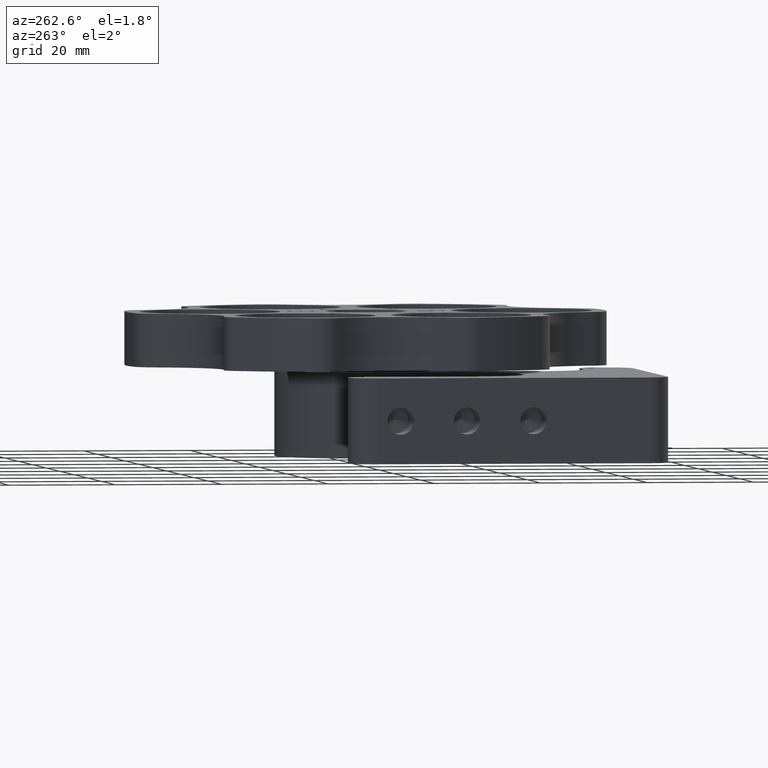
[diagram: clean part render]
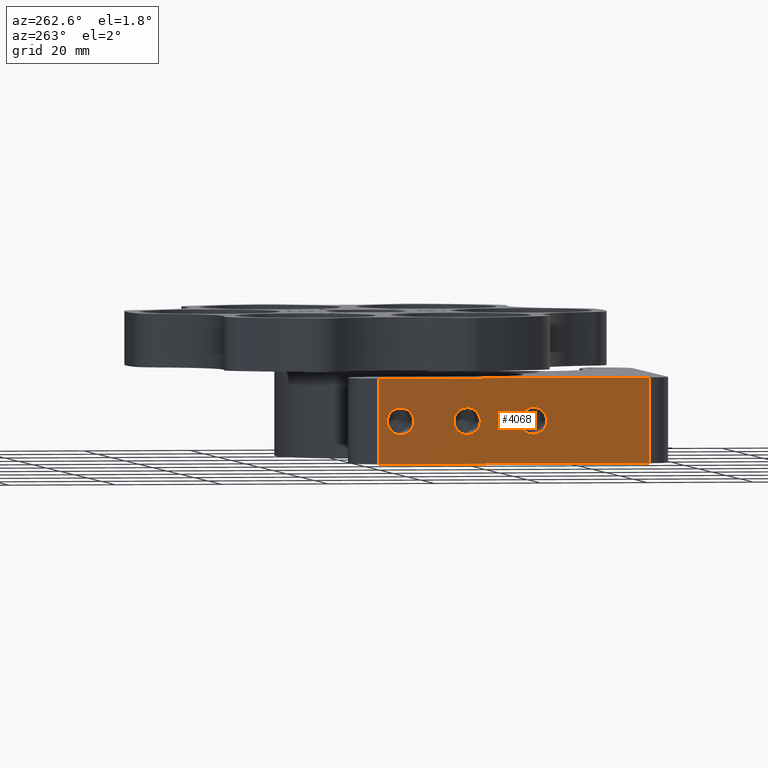
[diagram: same view with one face highlighted and labeled with its STEP entity id]
A machine part, auxiliary view. The second image highlights one B-rep face of the part: STEP entity #4068.
In plain terms, the highlighted planar face has unit normal (-1, -0, 0).
Its self-contained STEP definition (entity closure, byte-faithful):
#19 = VECTOR ( 'NONE', #11104, 1000.000000000000000 ) ;
#22 = CARTESIAN_POINT ( 'NONE',  ( -50.79999999999994700, -91.60983450373436200, -16.00000000000000000 ) ) ;
#30 = EDGE_CURVE ( 'NONE', #13183, #8534, #9147, .T. ) ;
#525 = CARTESIAN_POINT ( 'NONE',  ( -50.80000000000001800, -25.00000000000005700, -8.000000000000000000 ) ) ;
#652 = CARTESIAN_POINT ( 'NONE',  ( -50.80000000000003300, -12.50000000000005700, -5.500000000000009800 ) ) ;
#849 = CARTESIAN_POINT ( 'NONE',  ( -50.79999999999999700, -46.79999999999999700, 0.0000000000000000000 ) ) ;
#888 = CARTESIAN_POINT ( 'NONE',  ( -50.80000000000003300, -12.50000000000005700, -10.49999999999999100 ) ) ;
#1104 = ORIENTED_EDGE ( 'NONE', *, *, #3341, .F. ) ;
#1213 = DIRECTION ( 'NONE',  ( 0.0000000000000000000, 0.0000000000000000000, 1.000000000000000000 ) ) ;
#1270 = DIRECTION ( 'NONE',  ( 1.088453945710937900E-015, -1.000000000000000000, 0.0000000000000000000 ) ) ;
#1609 = CARTESIAN_POINT ( 'NONE',  ( -50.80000000000005400, 4.200000000000009100, -16.00000000000000000 ) ) ;
#1632 = LINE ( 'NONE', #9636, #9549 ) ;
#1870 = CARTESIAN_POINT ( 'NONE',  ( -50.80000000000001800, -25.00000000000005700, -10.49999999999998900 ) ) ;
#1981 = DIRECTION ( 'NONE',  ( -1.000000000000000000, -0.0000000000000000000, -0.0000000000000000000 ) ) ;
#2241 = LINE ( 'NONE', #7752, #11698 ) ;
#2274 = PLANE ( 'NONE',  #4017 ) ;
#2676 = VERTEX_POINT ( 'NONE', #849 ) ;
#2740 = DIRECTION ( 'NONE',  ( -1.000000000000000000, -0.0000000000000000000, -0.0000000000000000000 ) ) ;
#2898 = DIRECTION ( 'NONE',  ( 0.0000000000000000000, 0.0000000000000000000, 1.000000000000000000 ) ) ;
#3107 = EDGE_CURVE ( 'NONE', #15433, #2676, #1632, .T. ) ;
#3302 = ORIENTED_EDGE ( 'NONE', *, *, #12510, .F. ) ;
#3341 = EDGE_CURVE ( 'NONE', #8534, #13183, #11058, .T. ) ;
#3632 = DIRECTION ( 'NONE',  ( -1.000000000000000000, -0.0000000000000000000, -0.0000000000000000000 ) ) ;
#3790 = LINE ( 'NONE', #1609, #19 ) ;
#3792 = DIRECTION ( 'NONE',  ( 1.088453945710937700E-015, -1.000000000000000000, 0.0000000000000000000 ) ) ;
#4008 = VERTEX_POINT ( 'NONE', #15567 ) ;
#4017 = AXIS2_PLACEMENT_3D ( 'NONE', #12082, #11874, #1270 ) ;
#4068 = ADVANCED_FACE ( 'NONE', ( #9345, #4834, #14085, #10098 ), #2274, .T. ) ;
#4363 = EDGE_CURVE ( 'NONE', #15660, #9530, #4438, .T. ) ;
#4385 = ORIENTED_EDGE ( 'NONE', *, *, #14768, .F. ) ;
#4410 = EDGE_LOOP ( 'NONE', ( #14919, #1104 ) ) ;
#4438 = CIRCLE ( 'NONE', #15339, 2.499999999999990200 ) ;
#4448 = ORIENTED_EDGE ( 'NONE', *, *, #4363, .F. ) ;
#4587 = AXIS2_PLACEMENT_3D ( 'NONE', #9275, #1981, #15344 ) ;
#4769 = VERTEX_POINT ( 'NONE', #13282 ) ;
#4799 = ORIENTED_EDGE ( 'NONE', *, *, #9705, .F. ) ;
#4834 = FACE_BOUND ( 'NONE', #12826, .T. ) ;
#4986 = ORIENTED_EDGE ( 'NONE', *, *, #14373, .T. ) ;
#5159 = DIRECTION ( 'NONE',  ( 0.0000000000000000000, 0.0000000000000000000, 1.000000000000000000 ) ) ;
#5298 = DIRECTION ( 'NONE',  ( -1.000000000000000000, -0.0000000000000000000, -0.0000000000000000000 ) ) ;
#5355 = ORIENTED_EDGE ( 'NONE', *, *, #14145, .T. ) ;
#5779 = ORIENTED_EDGE ( 'NONE', *, *, #3107, .F. ) ;
#6042 = VERTEX_POINT ( 'NONE', #11529 ) ;
#7113 = DIRECTION ( 'NONE',  ( 1.088453945710937700E-015, -1.000000000000000000, 0.0000000000000000000 ) ) ;
#7508 = CIRCLE ( 'NONE', #4587, 2.499999999999990200 ) ;
#7752 = CARTESIAN_POINT ( 'NONE',  ( -50.79999999999999700, -46.79999999999999700, -16.00000000000000000 ) ) ;
#7879 = EDGE_CURVE ( 'NONE', #9530, #15660, #11723, .T. ) ;
#8129 = VERTEX_POINT ( 'NONE', #9478 ) ;
#8275 = CARTESIAN_POINT ( 'NONE',  ( -50.80000000000005400, 4.200000000000009100, 0.0000000000000000000 ) ) ;
#8461 = EDGE_LOOP ( 'NONE', ( #5779, #3302, #5355, #4986 ) ) ;
#8534 = VERTEX_POINT ( 'NONE', #1870 ) ;
#8584 = CARTESIAN_POINT ( 'NONE',  ( -50.80000000000004700, -5.529346044211569900E-014, -8.000000000000000000 ) ) ;
#9147 = CIRCLE ( 'NONE', #9856, 2.499999999999988500 ) ;
#9249 = AXIS2_PLACEMENT_3D ( 'NONE', #8584, #3632, #1213 ) ;
#9275 = CARTESIAN_POINT ( 'NONE',  ( -50.80000000000004700, -5.529346044211569900E-014, -8.000000000000000000 ) ) ;
#9345 = FACE_BOUND ( 'NONE', #4410, .T. ) ;
#9478 = CARTESIAN_POINT ( 'NONE',  ( -50.80000000000004700, -5.529346044211569900E-014, -5.500000000000009800 ) ) ;
#9530 = VERTEX_POINT ( 'NONE', #652 ) ;
#9549 = VECTOR ( 'NONE', #3792, 1000.000000000000000 ) ;
#9636 = CARTESIAN_POINT ( 'NONE',  ( -50.79999999999994700, -91.60983450373436200, 0.0000000000000000000 ) ) ;
#9705 = EDGE_CURVE ( 'NONE', #4769, #8129, #7508, .T. ) ;
#9856 = AXIS2_PLACEMENT_3D ( 'NONE', #525, #12429, #5159 ) ;
#9905 = EDGE_LOOP ( 'NONE', ( #4385, #4799 ) ) ;
#9948 = DIRECTION ( 'NONE',  ( 0.0000000000000000000, 0.0000000000000000000, 1.000000000000000000 ) ) ;
#9993 = ORIENTED_EDGE ( 'NONE', *, *, #7879, .F. ) ;
#10098 = FACE_OUTER_BOUND ( 'NONE', #8461, .T. ) ;
#10258 = DIRECTION ( 'NONE',  ( -1.000000000000000000, -0.0000000000000000000, -0.0000000000000000000 ) ) ;
#10354 = CIRCLE ( 'NONE', #9249, 2.499999999999990200 ) ;
#10436 = AXIS2_PLACEMENT_3D ( 'NONE', #13556, #2740, #9948 ) ;
#11058 = CIRCLE ( 'NONE', #12499, 2.499999999999988500 ) ;
#11104 = DIRECTION ( 'NONE',  ( 0.0000000000000000000, 0.0000000000000000000, 1.000000000000000000 ) ) ;
#11529 = CARTESIAN_POINT ( 'NONE',  ( -50.80000000000005400, 4.200000000000009100, -16.00000000000000000 ) ) ;
#11698 = VECTOR ( 'NONE', #15235, 1000.000000000000000 ) ;
#11723 = CIRCLE ( 'NONE', #10436, 2.499999999999990200 ) ;
#11874 = DIRECTION ( 'NONE',  ( -1.000000000000000000, -1.088453945710937900E-015, 0.0000000000000000000 ) ) ;
#12082 = CARTESIAN_POINT ( 'NONE',  ( -50.79999999999994700, -91.60983450373436200, -16.00000000000000000 ) ) ;
#12429 = DIRECTION ( 'NONE',  ( -1.000000000000000000, -0.0000000000000000000, -0.0000000000000000000 ) ) ;
#12499 = AXIS2_PLACEMENT_3D ( 'NONE', #13975, #10258, #2898 ) ;
#12510 = EDGE_CURVE ( 'NONE', #6042, #15433, #3790, .T. ) ;
#12826 = EDGE_LOOP ( 'NONE', ( #9993, #4448 ) ) ;
#13019 = LINE ( 'NONE', #22, #14323 ) ;
#13183 = VERTEX_POINT ( 'NONE', #15260 ) ;
#13282 = CARTESIAN_POINT ( 'NONE',  ( -50.80000000000004700, -5.498729874232886100E-014, -10.49999999999999100 ) ) ;
#13520 = CARTESIAN_POINT ( 'NONE',  ( -50.80000000000003300, -12.50000000000005700, -8.000000000000000000 ) ) ;
#13556 = CARTESIAN_POINT ( 'NONE',  ( -50.80000000000003300, -12.50000000000005700, -8.000000000000000000 ) ) ;
#13635 = DIRECTION ( 'NONE',  ( 0.0000000000000000000, 0.0000000000000000000, 1.000000000000000000 ) ) ;
#13975 = CARTESIAN_POINT ( 'NONE',  ( -50.80000000000001800, -25.00000000000005700, -8.000000000000000000 ) ) ;
#14085 = FACE_BOUND ( 'NONE', #9905, .T. ) ;
#14145 = EDGE_CURVE ( 'NONE', #6042, #4008, #13019, .T. ) ;
#14323 = VECTOR ( 'NONE', #7113, 1000.000000000000000 ) ;
#14373 = EDGE_CURVE ( 'NONE', #4008, #2676, #2241, .T. ) ;
#14768 = EDGE_CURVE ( 'NONE', #8129, #4769, #10354, .T. ) ;
#14919 = ORIENTED_EDGE ( 'NONE', *, *, #30, .F. ) ;
#15235 = DIRECTION ( 'NONE',  ( 0.0000000000000000000, 0.0000000000000000000, 1.000000000000000000 ) ) ;
#15260 = CARTESIAN_POINT ( 'NONE',  ( -50.80000000000001800, -25.00000000000005700, -5.500000000000011500 ) ) ;
#15339 = AXIS2_PLACEMENT_3D ( 'NONE', #13520, #5298, #13635 ) ;
#15344 = DIRECTION ( 'NONE',  ( 0.0000000000000000000, 0.0000000000000000000, 1.000000000000000000 ) ) ;
#15433 = VERTEX_POINT ( 'NONE', #8275 ) ;
#15567 = CARTESIAN_POINT ( 'NONE',  ( -50.79999999999999700, -46.79999999999999700, -16.00000000000000000 ) ) ;
#15660 = VERTEX_POINT ( 'NONE', #888 ) ;